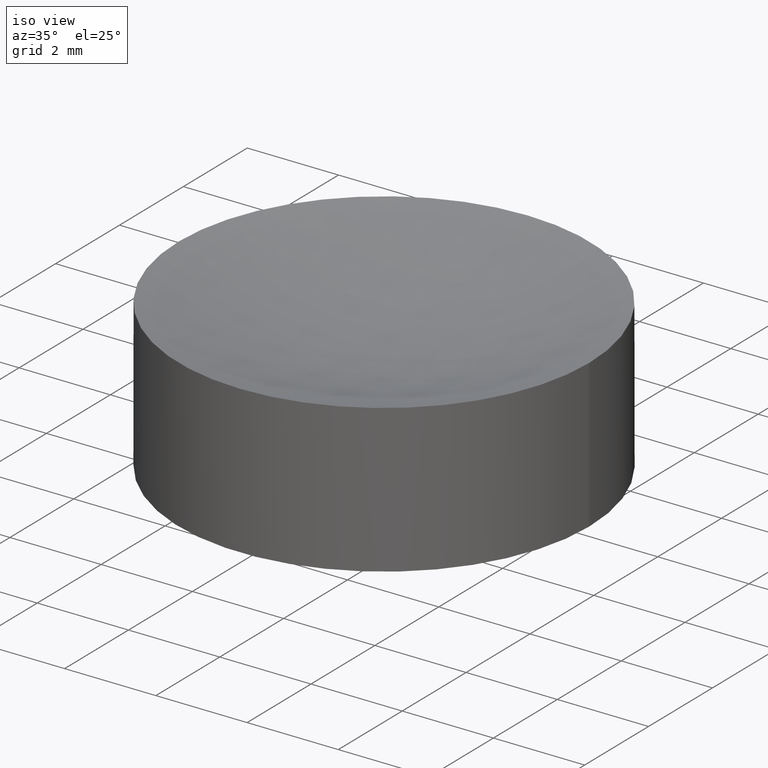
[diagram: clean part render]
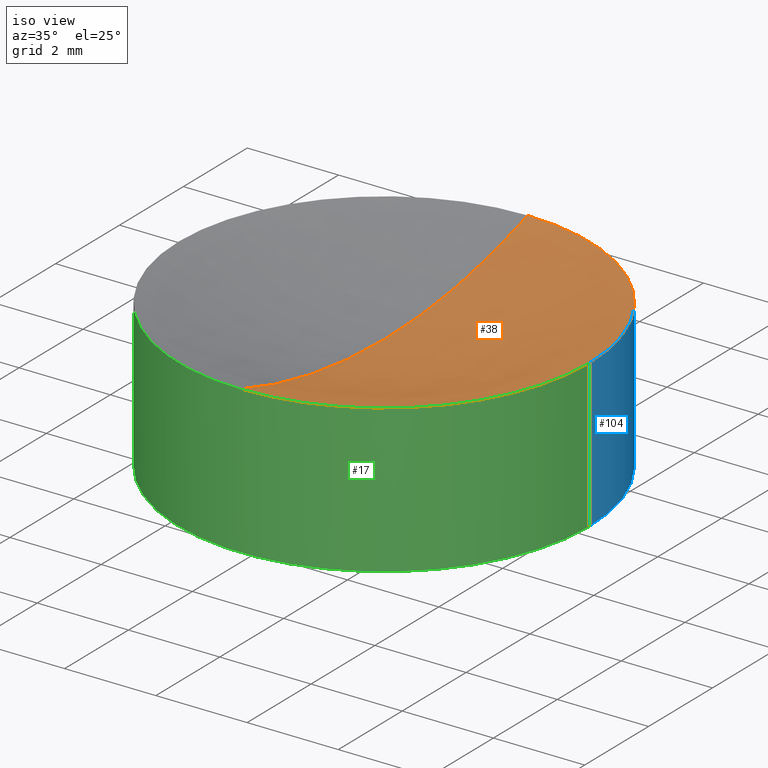
[diagram: same view with three faces highlighted in distinct colors, each labeled with its STEP entity id]
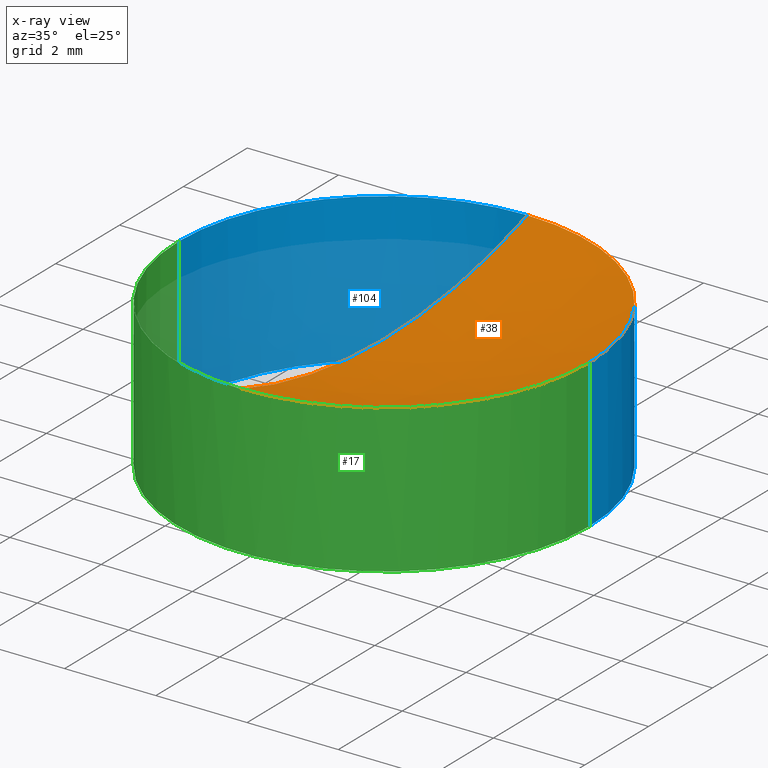
[diagram: x-ray of the same camera — body ghosted, the three highlighted faces saturated]
A machine part, iso view with three faces highlighted in distinct colors.
The next image is the same camera in x-ray (body ghosted, the three faces saturated) — at least one of them is partly hidden behind the body in this view.
Their STEP definitions:

[orange] entity #38 — the highlighted spherical surface has radius 14.01 mm.
#13 = DIRECTION ( 'NONE',  ( -1.224606353822377300E-016, -1.000000000000000000, 0.0000000000000000000 ) ) ;
#14 = DIRECTION ( 'NONE',  ( -1.000000000000000000, 1.224606353822377300E-016, 0.0000000000000000000 ) ) ;
#15 = CARTESIAN_POINT ( 'NONE',  ( 0.0000000000000000000, 0.0000000000000000000, 0.6007874015748031500 ) ) ;
#16 = AXIS2_PLACEMENT_3D ( 'NONE', #15, #14, #13 ) ;
#26 = EDGE_CURVE ( 'NONE', #36, #32, #53, .T. ) ;
#27 = ORIENTED_EDGE ( 'NONE', *, *, #37, .T. ) ;
#28 = ORIENTED_EDGE ( 'NONE', *, *, #51, .T. ) ;
#32 = VERTEX_POINT ( 'NONE', #133 ) ;
#33 = ORIENTED_EDGE ( 'NONE', *, *, #35, .F. ) ;
#34 = ORIENTED_EDGE ( 'NONE', *, *, #26, .T. ) ;
#35 = EDGE_CURVE ( 'NONE', #36, #94, #162, .T. ) ;
#36 = VERTEX_POINT ( 'NONE', #145 ) ;
#37 = EDGE_CURVE ( 'NONE', #32, #50, #126, .T. ) ;
#38 = ADVANCED_FACE ( 'NONE', ( #119 ), #158, .F. ) ;
#39 = EDGE_LOOP ( 'NONE', ( #33, #34, #27, #28 ) ) ;
#50 = VERTEX_POINT ( 'NONE', #182 ) ;
#51 = EDGE_CURVE ( 'NONE', #50, #94, #181, .T. ) ;
#53 = CIRCLE ( 'NONE', #16, 0.5515748031496062700 ) ;
#94 = VERTEX_POINT ( 'NONE', #251 ) ;
#117 = CARTESIAN_POINT ( 'NONE',  ( 0.0000000000000000000, 0.0000000000000000000, 0.07843962404109772200 ) ) ;
#118 = AXIS2_PLACEMENT_3D ( 'NONE', #117, #132, #131 ) ;
#119 = FACE_OUTER_BOUND ( 'NONE', #39, .T. ) ;
#124 = DIRECTION ( 'NONE',  ( 0.0000000000000000000, 0.0000000000000000000, -1.000000000000000000 ) ) ;
#125 = DIRECTION ( 'NONE',  ( 1.000000000000000000, 0.0000000000000000000, 0.0000000000000000000 ) ) ;
#126 = CIRCLE ( 'NONE', #118, 0.1771653543307086800 ) ;
#131 = DIRECTION ( 'NONE',  ( 1.000000000000000000, 0.0000000000000000000, 0.0000000000000000000 ) ) ;
#132 = DIRECTION ( 'NONE',  ( -0.0000000000000000000, -0.0000000000000000000, 1.000000000000000000 ) ) ;
#133 = CARTESIAN_POINT ( 'NONE',  ( -2.169578185905786800E-017, -0.1771653543307086800, 0.07843962404109772200 ) ) ;
#145 = CARTESIAN_POINT ( 'NONE',  ( 0.0000000000000000000, 3.377310042726673900E-017, 0.04921259842519682500 ) ) ;
#146 = DIRECTION ( 'NONE',  ( 0.0000000000000000000, 1.000000000000000000, 0.0000000000000000000 ) ) ;
#147 = DIRECTION ( 'NONE',  ( -1.000000000000000000, 0.0000000000000000000, 0.0000000000000000000 ) ) ;
#148 = AXIS2_PLACEMENT_3D ( 'NONE', #157, #147, #146 ) ;
#157 = CARTESIAN_POINT ( 'NONE',  ( 0.0000000000000000000, 0.0000000000000000000, 0.6007874015748031500 ) ) ;
#158 = SPHERICAL_SURFACE ( 'NONE', #148, 0.5515748031496062700 ) ;
#160 = CARTESIAN_POINT ( 'NONE',  ( 0.0000000000000000000, 0.0000000000000000000, 0.6007874015748031500 ) ) ;
#161 = AXIS2_PLACEMENT_3D ( 'NONE', #160, #125, #124 ) ;
#162 = CIRCLE ( 'NONE', #161, 0.5515748031496062700 ) ;
#181 = CIRCLE ( 'NONE', #186, 0.1771653543307086800 ) ;
#182 = CARTESIAN_POINT ( 'NONE',  ( 0.1771653543307086800, 0.0000000000000000000, 0.07843962404109772200 ) ) ;
#183 = DIRECTION ( 'NONE',  ( 1.000000000000000000, 0.0000000000000000000, 0.0000000000000000000 ) ) ;
#184 = DIRECTION ( 'NONE',  ( -0.0000000000000000000, -0.0000000000000000000, 1.000000000000000000 ) ) ;
#185 = CARTESIAN_POINT ( 'NONE',  ( 0.0000000000000000000, 0.0000000000000000000, 0.07843962404109772200 ) ) ;
#186 = AXIS2_PLACEMENT_3D ( 'NONE', #185, #184, #183 ) ;
#251 = CARTESIAN_POINT ( 'NONE',  ( 0.0000000000000000000, 0.1771653543307086800, 0.07843962404109772200 ) ) ;

[blue] entity #104 — the highlighted cylindrical surface (partial cylindrical patch) has radius 4.5 mm, axis along (-0, -0, 1).
#1 = DIRECTION ( 'NONE',  ( -0.0000000000000000000, -0.0000000000000000000, 1.000000000000000000 ) ) ;
#2 = DIRECTION ( 'NONE',  ( 1.000000000000000000, 0.0000000000000000000, 0.0000000000000000000 ) ) ;
#48 = EDGE_CURVE ( 'NONE', #94, #102, #151, .T. ) ;
#49 = ORIENTED_EDGE ( 'NONE', *, *, #51, .F. ) ;
#50 = VERTEX_POINT ( 'NONE', #182 ) ;
#51 = EDGE_CURVE ( 'NONE', #50, #94, #181, .T. ) ;
#52 = ORIENTED_EDGE ( 'NONE', *, *, #92, .F. ) ;
#92 = EDGE_CURVE ( 'NONE', #97, #50, #187, .T. ) ;
#93 = ORIENTED_EDGE ( 'NONE', *, *, #48, .F. ) ;
#94 = VERTEX_POINT ( 'NONE', #251 ) ;
#95 = ORIENTED_EDGE ( 'NONE', *, *, #96, .T. ) ;
#96 = EDGE_CURVE ( 'NONE', #97, #98, #250, .T. ) ;
#97 = VERTEX_POINT ( 'NONE', #188 ) ;
#98 = VERTEX_POINT ( 'NONE', #201 ) ;
#99 = EDGE_LOOP ( 'NONE', ( #95, #100, #93, #49, #52 ) ) ;
#100 = ORIENTED_EDGE ( 'NONE', *, *, #101, .T. ) ;
#101 = EDGE_CURVE ( 'NONE', #98, #102, #229, .T. ) ;
#102 = VERTEX_POINT ( 'NONE', #260 ) ;
#104 = ADVANCED_FACE ( 'NONE', ( #258 ), #198, .T. ) ;
#149 = CARTESIAN_POINT ( 'NONE',  ( 0.0000000000000000000, 0.0000000000000000000, 0.07843962404109772200 ) ) ;
#150 = AXIS2_PLACEMENT_3D ( 'NONE', #149, #1, #2 ) ;
#151 = CIRCLE ( 'NONE', #150, 0.1771653543307086800 ) ;
#178 = DIRECTION ( 'NONE',  ( -0.0000000000000000000, -0.0000000000000000000, 1.000000000000000000 ) ) ;
#179 = VECTOR ( 'NONE', #178, 39.37007874015748100 ) ;
#180 = CARTESIAN_POINT ( 'NONE',  ( 0.1771653543307086800, 0.0000000000000000000, 0.3550060342688710600 ) ) ;
#181 = CIRCLE ( 'NONE', #186, 0.1771653543307086800 ) ;
#182 = CARTESIAN_POINT ( 'NONE',  ( 0.1771653543307086800, 0.0000000000000000000, 0.07843962404109772200 ) ) ;
#183 = DIRECTION ( 'NONE',  ( 1.000000000000000000, 0.0000000000000000000, 0.0000000000000000000 ) ) ;
#184 = DIRECTION ( 'NONE',  ( -0.0000000000000000000, -0.0000000000000000000, 1.000000000000000000 ) ) ;
#185 = CARTESIAN_POINT ( 'NONE',  ( 0.0000000000000000000, 0.0000000000000000000, 0.07843962404109772200 ) ) ;
#186 = AXIS2_PLACEMENT_3D ( 'NONE', #185, #184, #183 ) ;
#187 = LINE ( 'NONE', #180, #179 ) ;
#188 = CARTESIAN_POINT ( 'NONE',  ( 0.1771653543307086500, 0.0000000000000000000, -0.04921259842519682500 ) ) ;
#198 = CYLINDRICAL_SURFACE ( 'NONE', #208, 0.1771653543307086800 ) ;
#201 = CARTESIAN_POINT ( 'NONE',  ( -0.1771653543307086500, 2.169578185905786500E-017, -0.04921259842519682500 ) ) ;
#206 = DIRECTION ( 'NONE',  ( -0.0000000000000000000, -0.0000000000000000000, 1.000000000000000000 ) ) ;
#207 = CARTESIAN_POINT ( 'NONE',  ( 0.0000000000000000000, 0.0000000000000000000, 0.3550060342688710600 ) ) ;
#208 = AXIS2_PLACEMENT_3D ( 'NONE', #207, #206, #213 ) ;
#213 = DIRECTION ( 'NONE',  ( 1.000000000000000000, 0.0000000000000000000, 0.0000000000000000000 ) ) ;
#225 = CARTESIAN_POINT ( 'NONE',  ( 0.0000000000000000000, 0.0000000000000000000, -0.04921259842519682500 ) ) ;
#226 = DIRECTION ( 'NONE',  ( -0.0000000000000000000, -0.0000000000000000000, 1.000000000000000000 ) ) ;
#227 = CARTESIAN_POINT ( 'NONE',  ( -0.1771653543307086800, 2.169578185905786800E-017, 0.3550060342688710600 ) ) ;
#229 = LINE ( 'NONE', #227, #232 ) ;
#230 = DIRECTION ( 'NONE',  ( 1.000000000000000000, 0.0000000000000000000, 0.0000000000000000000 ) ) ;
#232 = VECTOR ( 'NONE', #226, 39.37007874015748100 ) ;
#249 = AXIS2_PLACEMENT_3D ( 'NONE', #225, #273, #230 ) ;
#250 = CIRCLE ( 'NONE', #249, 0.1771653543307086500 ) ;
#251 = CARTESIAN_POINT ( 'NONE',  ( 0.0000000000000000000, 0.1771653543307086800, 0.07843962404109772200 ) ) ;
#258 = FACE_OUTER_BOUND ( 'NONE', #99, .T. ) ;
#260 = CARTESIAN_POINT ( 'NONE',  ( -0.1771653543307086800, 2.169578185905786800E-017, 0.07843962404109772200 ) ) ;
#273 = DIRECTION ( 'NONE',  ( -0.0000000000000000000, -0.0000000000000000000, 1.000000000000000000 ) ) ;

[green] entity #17 — the highlighted cylindrical surface (partial cylindrical patch) has radius 4.5 mm, axis along (-0, -0, 1).
#17 = ADVANCED_FACE ( 'NONE', ( #91 ), #59, .T. ) ;
#18 = EDGE_LOOP ( 'NONE', ( #19, #20, #21, #22, #23 ) ) ;
#19 = ORIENTED_EDGE ( 'NONE', *, *, #101, .F. ) ;
#20 = ORIENTED_EDGE ( 'NONE', *, *, #47, .T. ) ;
#21 = ORIENTED_EDGE ( 'NONE', *, *, #92, .T. ) ;
#22 = ORIENTED_EDGE ( 'NONE', *, *, #37, .F. ) ;
#23 = ORIENTED_EDGE ( 'NONE', *, *, #42, .F. ) ;
#32 = VERTEX_POINT ( 'NONE', #133 ) ;
#37 = EDGE_CURVE ( 'NONE', #32, #50, #126, .T. ) ;
#42 = EDGE_CURVE ( 'NONE', #102, #32, #115, .T. ) ;
#47 = EDGE_CURVE ( 'NONE', #98, #97, #167, .T. ) ;
#50 = VERTEX_POINT ( 'NONE', #182 ) ;
#55 = DIRECTION ( 'NONE',  ( 1.000000000000000000, 0.0000000000000000000, 0.0000000000000000000 ) ) ;
#56 = DIRECTION ( 'NONE',  ( -0.0000000000000000000, -0.0000000000000000000, 1.000000000000000000 ) ) ;
#57 = CARTESIAN_POINT ( 'NONE',  ( 0.0000000000000000000, 0.0000000000000000000, 0.3550060342688710600 ) ) ;
#58 = AXIS2_PLACEMENT_3D ( 'NONE', #57, #56, #55 ) ;
#59 = CYLINDRICAL_SURFACE ( 'NONE', #58, 0.1771653543307086800 ) ;
#91 = FACE_OUTER_BOUND ( 'NONE', #18, .T. ) ;
#92 = EDGE_CURVE ( 'NONE', #97, #50, #187, .T. ) ;
#97 = VERTEX_POINT ( 'NONE', #188 ) ;
#98 = VERTEX_POINT ( 'NONE', #201 ) ;
#101 = EDGE_CURVE ( 'NONE', #98, #102, #229, .T. ) ;
#102 = VERTEX_POINT ( 'NONE', #260 ) ;
#111 = DIRECTION ( 'NONE',  ( 1.000000000000000000, 0.0000000000000000000, 0.0000000000000000000 ) ) ;
#112 = DIRECTION ( 'NONE',  ( -0.0000000000000000000, -0.0000000000000000000, 1.000000000000000000 ) ) ;
#113 = CARTESIAN_POINT ( 'NONE',  ( 0.0000000000000000000, 0.0000000000000000000, 0.07843962404109772200 ) ) ;
#114 = AXIS2_PLACEMENT_3D ( 'NONE', #113, #112, #111 ) ;
#115 = CIRCLE ( 'NONE', #114, 0.1771653543307086800 ) ;
#117 = CARTESIAN_POINT ( 'NONE',  ( 0.0000000000000000000, 0.0000000000000000000, 0.07843962404109772200 ) ) ;
#118 = AXIS2_PLACEMENT_3D ( 'NONE', #117, #132, #131 ) ;
#126 = CIRCLE ( 'NONE', #118, 0.1771653543307086800 ) ;
#131 = DIRECTION ( 'NONE',  ( 1.000000000000000000, 0.0000000000000000000, 0.0000000000000000000 ) ) ;
#132 = DIRECTION ( 'NONE',  ( -0.0000000000000000000, -0.0000000000000000000, 1.000000000000000000 ) ) ;
#133 = CARTESIAN_POINT ( 'NONE',  ( -2.169578185905786800E-017, -0.1771653543307086800, 0.07843962404109772200 ) ) ;
#152 = DIRECTION ( 'NONE',  ( 1.000000000000000000, 0.0000000000000000000, 0.0000000000000000000 ) ) ;
#153 = DIRECTION ( 'NONE',  ( -0.0000000000000000000, -0.0000000000000000000, 1.000000000000000000 ) ) ;
#154 = CARTESIAN_POINT ( 'NONE',  ( 0.0000000000000000000, 0.0000000000000000000, -0.04921259842519682500 ) ) ;
#155 = AXIS2_PLACEMENT_3D ( 'NONE', #154, #153, #152 ) ;
#167 = CIRCLE ( 'NONE', #155, 0.1771653543307086500 ) ;
#178 = DIRECTION ( 'NONE',  ( -0.0000000000000000000, -0.0000000000000000000, 1.000000000000000000 ) ) ;
#179 = VECTOR ( 'NONE', #178, 39.37007874015748100 ) ;
#180 = CARTESIAN_POINT ( 'NONE',  ( 0.1771653543307086800, 0.0000000000000000000, 0.3550060342688710600 ) ) ;
#182 = CARTESIAN_POINT ( 'NONE',  ( 0.1771653543307086800, 0.0000000000000000000, 0.07843962404109772200 ) ) ;
#187 = LINE ( 'NONE', #180, #179 ) ;
#188 = CARTESIAN_POINT ( 'NONE',  ( 0.1771653543307086500, 0.0000000000000000000, -0.04921259842519682500 ) ) ;
#201 = CARTESIAN_POINT ( 'NONE',  ( -0.1771653543307086500, 2.169578185905786500E-017, -0.04921259842519682500 ) ) ;
#226 = DIRECTION ( 'NONE',  ( -0.0000000000000000000, -0.0000000000000000000, 1.000000000000000000 ) ) ;
#227 = CARTESIAN_POINT ( 'NONE',  ( -0.1771653543307086800, 2.169578185905786800E-017, 0.3550060342688710600 ) ) ;
#229 = LINE ( 'NONE', #227, #232 ) ;
#232 = VECTOR ( 'NONE', #226, 39.37007874015748100 ) ;
#260 = CARTESIAN_POINT ( 'NONE',  ( -0.1771653543307086800, 2.169578185905786800E-017, 0.07843962404109772200 ) ) ;